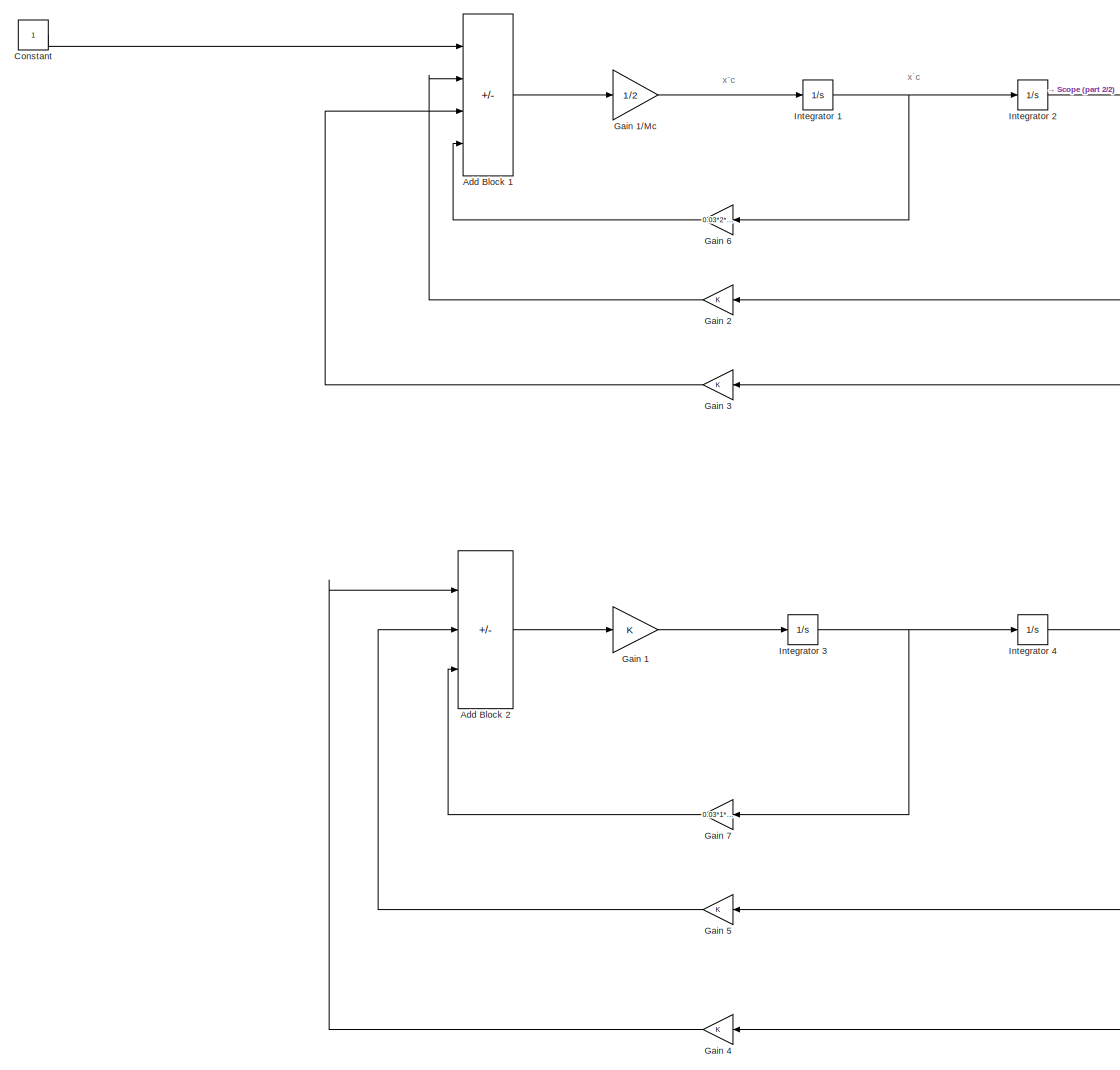
[diagram: root canvas - part 1/2, center side, full height]
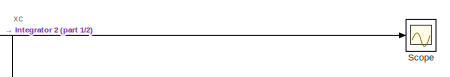
[diagram: root canvas - part 2/2, top right region]
MODEL slx_d65e8e4cd7aa
KIND model
CONFIG AbsTol = auto
CONFIG EnableMultiTasking = off
CONFIG FixedStep = auto
CONFIG MaxStep = auto
CONFIG MinStep = auto
CONFIG RelTol = 1e-3
CONFIG SampleTimeConstraint = Unconstrained
CONFIG SolverName = VariableStepAuto
CONFIG StartTime = 0.0
CONFIG StopTime = 10.0
BLOCK [Sum] Add Block 1
  IconShape = rectangular
  Inputs = +-+-
BLOCK [Sum] Add Block 2
  IconShape = rectangular
  Inputs = +--
BLOCK [Constant] Constant 
BLOCK [Gain] Gain 1
BLOCK [Gain] Gain 1//Mc
  Gain = 1/2
BLOCK [Gain] Gain 2
  ParamMax = [2]
BLOCK [Gain] Gain 3
BLOCK [Gain] Gain 4
BLOCK [Gain] Gain 5
BLOCK [Gain] Gain 6
  Gain = 0.03*2*9.81
  ParamMax = [2]
BLOCK [Gain] Gain 7
  Gain = 0.03*1*9.81
  NameLocation = top
BLOCK [Integrator] Integrator 1
BLOCK [Integrator] Integrator 2
BLOCK [Integrator] Integrator 3
BLOCK [Integrator] Integrator 4
BLOCK [Scope] Scope 
  Floating = off
  NumInputPorts = 1
  ScopeSpecificationString = Simulink.scopes.TimeScopeBlockCfg('CurrentConfiguration', extmgr.ConfigurationSet(extmgr.Configuration('Core','General UI',true),extmgr.Configuration('Core','Source UI',true),extmgr.Configuration('Sources','WiredSimulink',true),extmgr.Configuration('Visuals','Time Domain',true),extmgr.Configuration('Tools','Plot Navigation',true),extmgr.Configuration('Tools','Measurements',true)),'Version','2022b'...<+1ch>
ANNOTATION (root): x˙c
ANNOTATION (root): xc
ANNOTATION (root): x¨c
LINE Add Block 1:1 -> Gain 1//Mc:1
LINE Add Block 2:1 -> Gain 1:1
LINE Constant :1 -> Add Block 1:1
LINE Gain 1//Mc:1 -> Integrator 1:1
LINE Gain 1:1 -> Integrator 3:1
LINE Gain 2:1 -> Add Block 1:2
LINE Gain 3:1 -> Add Block 1:3
LINE Gain 4:1 -> Add Block 2:1
LINE Gain 5:1 -> Add Block 2:2
LINE Gain 6:1 -> Add Block 1:4
LINE Gain 7:1 -> Add Block 2:3
NET Integrator 1:1 -> Gain 6:1, Integrator 2:1
NET Integrator 2:1 -> Gain 2:1, Gain 4:1, Scope :1
NET Integrator 3:1 -> Gain 7:1, Integrator 4:1
NET Integrator 4:1 -> Gain 3:1, Gain 5:1
note: NET lines group one-source signal fan-out (src -> all destinations, sorted); 1:1 wires keep LINE
